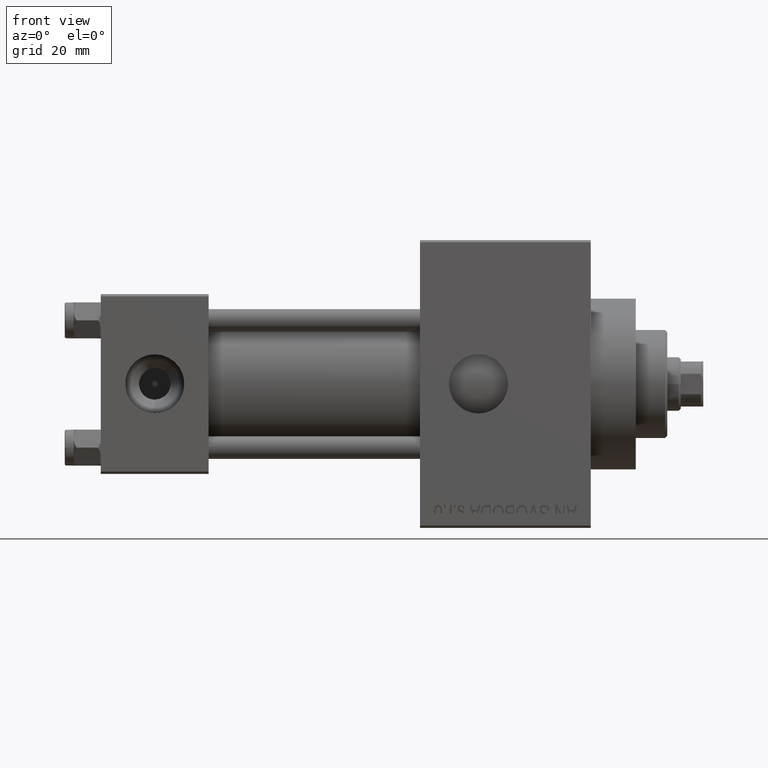
[diagram: clean part render]
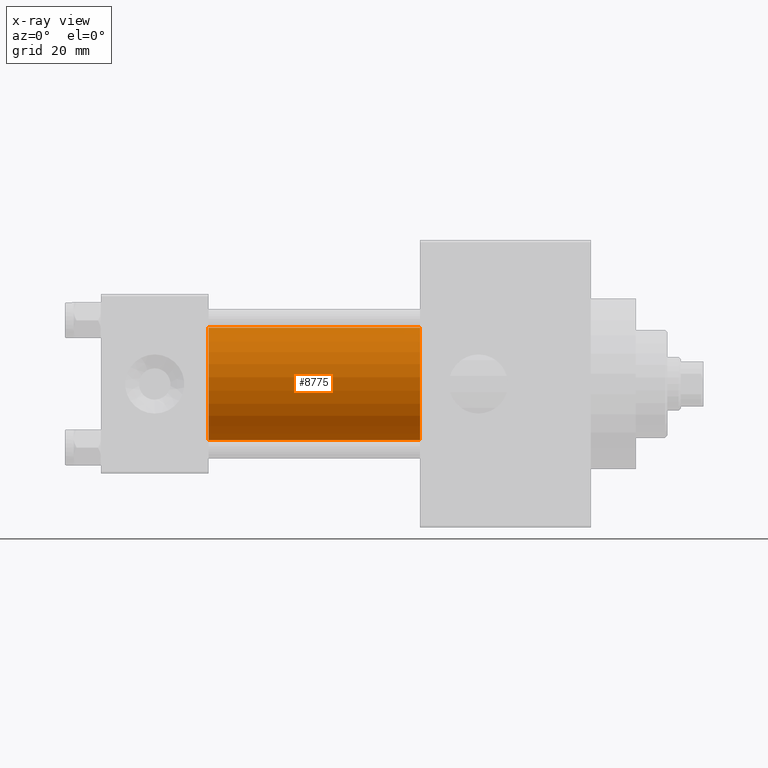
[diagram: x-ray — body ghosted, one internal face saturated and labeled with its STEP entity id]
A machine part, front view, then the same camera in x-ray: the body is ghosted and one INTERNAL B-rep face — a face not visible from any outside direction — is saturated and labeled: STEP entity #8775.
In plain terms, the highlighted cylindrical surface (partial cylindrical patch) has radius 12.5 mm, axis along (-1, -0, -0).
Its self-contained STEP definition (entity closure, byte-faithful):
#4230 = CIRCLE ( 'NONE', #30489, 12.49999999999999645 ) ;
#5105 = CARTESIAN_POINT ( 'NONE',  ( 71.00000000000001421, -2.602085213965210642E-15, 12.49999999999999645 ) ) ;
#5628 = CARTESIAN_POINT ( 'NONE',  ( 24.00000000000000000, -1.071276715031019515E-15, -12.49999999999999645 ) ) ;
#6100 = VERTEX_POINT ( 'NONE', #43295 ) ;
#8622 = LINE ( 'NONE', #28536, #20135 ) ;
#8775 = ADVANCED_FACE ( 'NONE', ( #44478 ), #20603, .F. ) ;
#9459 = DIRECTION ( 'NONE',  ( 1.000000000000000000, 0.000000000000000000, 0.000000000000000000 ) ) ;
#10188 = CARTESIAN_POINT ( 'NONE',  ( 71.00000000000001421, -2.602085213965210642E-15, 0.000000000000000000 ) ) ;
#10317 = CARTESIAN_POINT ( 'NONE',  ( 71.00000000000001421, -1.071276715031019515E-15, -12.49999999999999645 ) ) ;
#11598 = DIRECTION ( 'NONE',  ( 1.000000000000000000, 0.000000000000000000, 0.000000000000000000 ) ) ;
#14992 = VECTOR ( 'NONE', #43915, 1000.000000000000000 ) ;
#15518 = ORIENTED_EDGE ( 'NONE', *, *, #44256, .F. ) ;
#20091 = ORIENTED_EDGE ( 'NONE', *, *, #25924, .T. ) ;
#20135 = VECTOR ( 'NONE', #35499, 1000.000000000000000 ) ;
#20325 = VERTEX_POINT ( 'NONE', #5105 ) ;
#20603 = CYLINDRICAL_SURFACE ( 'NONE', #22663, 12.49999999999999645 ) ;
#22663 = AXIS2_PLACEMENT_3D ( 'NONE', #29062, #35780, #36747 ) ;
#24319 = CIRCLE ( 'NONE', #34663, 12.49999999999999645 ) ;
#25924 = EDGE_CURVE ( 'NONE', #6100, #40769, #28756, .T. ) ;
#26543 = CARTESIAN_POINT ( 'NONE',  ( 24.00000000000000000, -2.602085213965210642E-15, 0.000000000000000000 ) ) ;
#28536 = CARTESIAN_POINT ( 'NONE',  ( 71.00000000000001421, -2.602085213965210642E-15, 12.49999999999999645 ) ) ;
#28756 = LINE ( 'NONE', #10317, #14992 ) ;
#29062 = CARTESIAN_POINT ( 'NONE',  ( 71.00000000000001421, -2.602085213965210642E-15, 0.000000000000000000 ) ) ;
#30489 = AXIS2_PLACEMENT_3D ( 'NONE', #10188, #9459, #47290 ) ;
#31946 = VERTEX_POINT ( 'NONE', #32632 ) ;
#32632 = CARTESIAN_POINT ( 'NONE',  ( 24.00000000000000000, -2.602085213965210642E-15, 12.49999999999999645 ) ) ;
#34663 = AXIS2_PLACEMENT_3D ( 'NONE', #26543, #11598, #41714 ) ;
#35042 = ORIENTED_EDGE ( 'NONE', *, *, #43417, .F. ) ;
#35499 = DIRECTION ( 'NONE',  ( -1.000000000000000000, -0.000000000000000000, -0.000000000000000000 ) ) ;
#35780 = DIRECTION ( 'NONE',  ( -1.000000000000000000, -0.000000000000000000, -0.000000000000000000 ) ) ;
#36651 = EDGE_LOOP ( 'NONE', ( #41829, #20091, #35042, #15518 ) ) ;
#36747 = DIRECTION ( 'NONE',  ( 0.000000000000000000, 0.000000000000000000, 1.000000000000000000 ) ) ;
#40769 = VERTEX_POINT ( 'NONE', #5628 ) ;
#41714 = DIRECTION ( 'NONE',  ( 0.000000000000000000, 0.000000000000000000, -1.000000000000000000 ) ) ;
#41829 = ORIENTED_EDGE ( 'NONE', *, *, #48332, .T. ) ;
#43295 = CARTESIAN_POINT ( 'NONE',  ( 71.00000000000001421, -1.071276715031019515E-15, -12.49999999999999645 ) ) ;
#43417 = EDGE_CURVE ( 'NONE', #31946, #40769, #24319, .T. ) ;
#43915 = DIRECTION ( 'NONE',  ( -1.000000000000000000, -0.000000000000000000, -0.000000000000000000 ) ) ;
#44256 = EDGE_CURVE ( 'NONE', #20325, #31946, #8622, .T. ) ;
#44478 = FACE_OUTER_BOUND ( 'NONE', #36651, .T. ) ;
#47290 = DIRECTION ( 'NONE',  ( 0.000000000000000000, 0.000000000000000000, -1.000000000000000000 ) ) ;
#48332 = EDGE_CURVE ( 'NONE', #20325, #6100, #4230, .T. ) ;